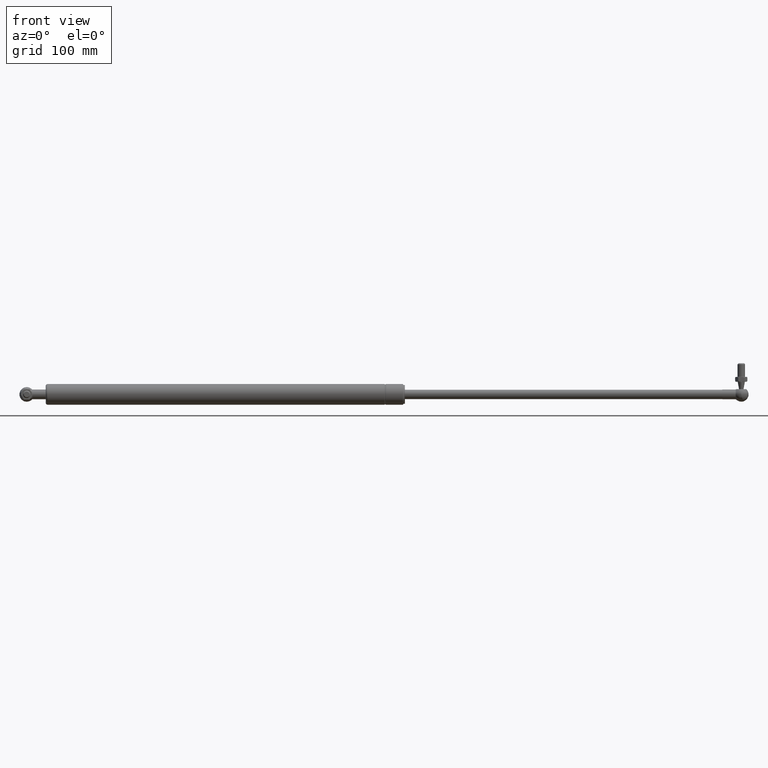
[diagram: clean part render]
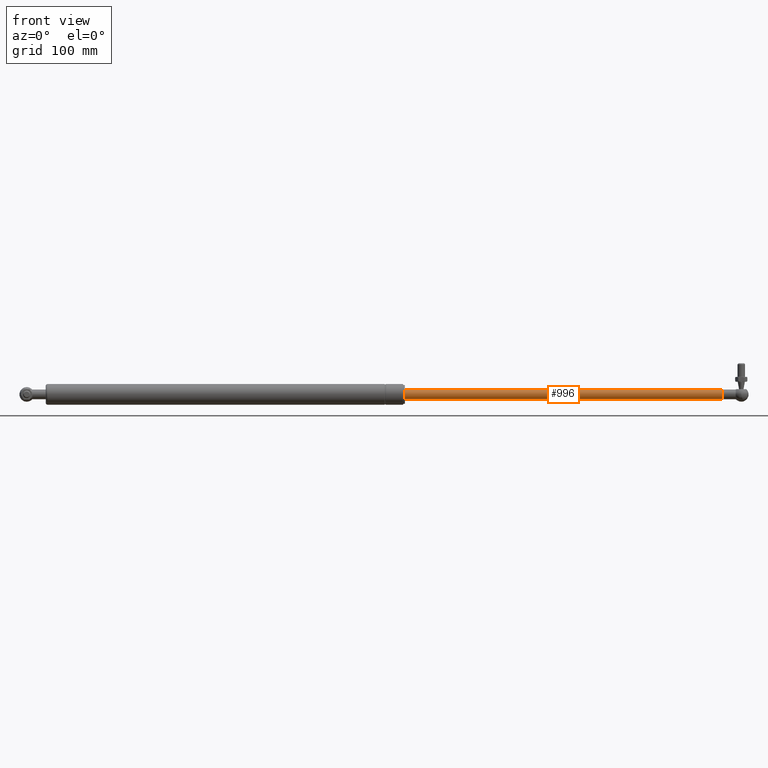
[diagram: same view with one face highlighted and labeled with its STEP entity id]
A machine part, front view. The second image highlights one B-rep face of the part: STEP entity #996.
In plain terms, the highlighted cylindrical surface (bore or boss wall) has radius 5 mm, axis along (1, 0, 0).
Its self-contained STEP definition (entity closure, byte-faithful):
#224=FACE_BOUND('',#356,.T.);
#253=CYLINDRICAL_SURFACE('',#1088,5.00000000000002);
#276=FACE_OUTER_BOUND('',#355,.T.);
#355=EDGE_LOOP('',(#730));
#356=EDGE_LOOP('',(#731));
#443=CIRCLE('',#1087,5.);
#444=CIRCLE('',#1089,5.00000000000003);
#492=VERTEX_POINT('',#1458);
#493=VERTEX_POINT('',#1461);
#589=EDGE_CURVE('',#492,#492,#443,.T.);
#590=EDGE_CURVE('',#493,#493,#444,.T.);
#730=ORIENTED_EDGE('',*,*,#590,.F.);
#731=ORIENTED_EDGE('',*,*,#589,.T.);
#996=ADVANCED_FACE('',(#276,#224),#253,.T.);
#1087=AXIS2_PLACEMENT_3D('',#1459,#1228,#1229);
#1088=AXIS2_PLACEMENT_3D('',#1460,#1230,#1231);
#1089=AXIS2_PLACEMENT_3D('',#1462,#1232,#1233);
#1228=DIRECTION('center_axis',(-1.,0.,0.));
#1229=DIRECTION('ref_axis',(0.,0.,1.));
#1230=DIRECTION('center_axis',(-1.,0.,0.));
#1231=DIRECTION('ref_axis',(0.,0.,1.));
#1232=DIRECTION('center_axis',(-1.,0.,0.));
#1233=DIRECTION('ref_axis',(0.,0.,1.));
#1458=CARTESIAN_POINT('',(338.,0.,5.));
#1459=CARTESIAN_POINT('Origin',(338.,0.,0.));
#1460=CARTESIAN_POINT('Origin',(169.,0.,0.));
#1461=CARTESIAN_POINT('',(7.1959436245814E-32,0.,5.00000000000003));
#1462=CARTESIAN_POINT('Origin',(0.,0.,0.));